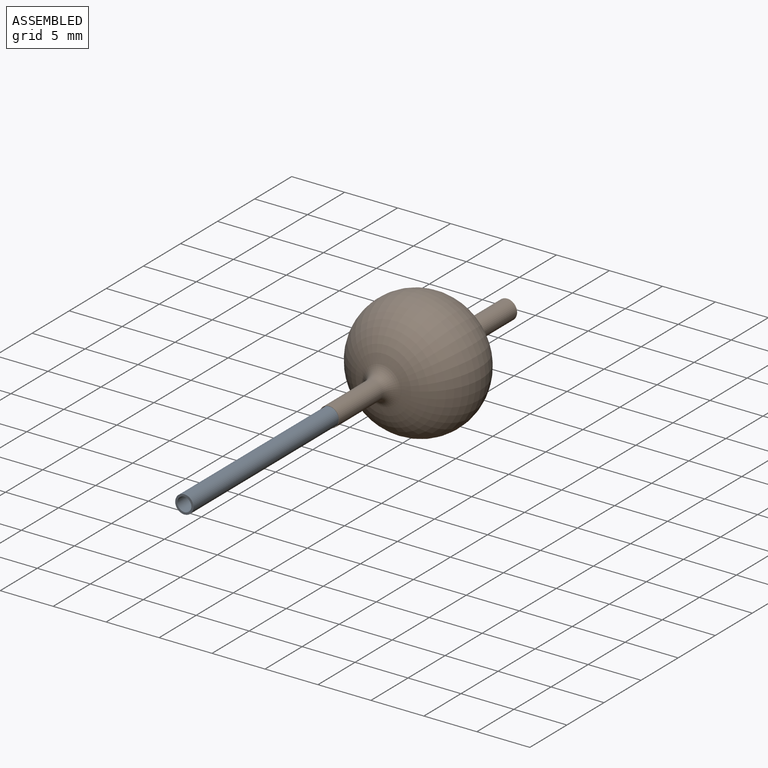
[diagram: assembled view]
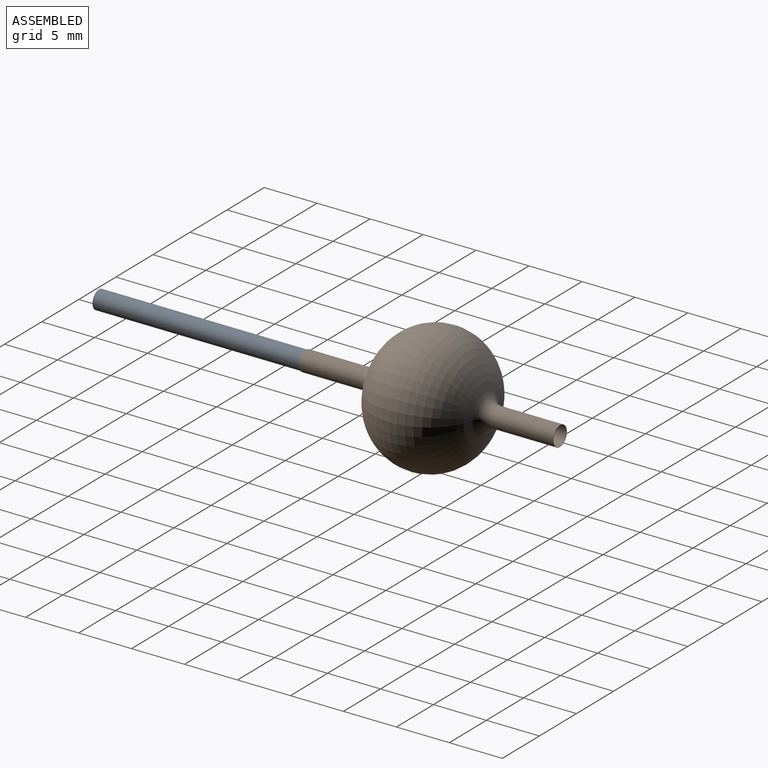
[diagram: assembled view, second angle]
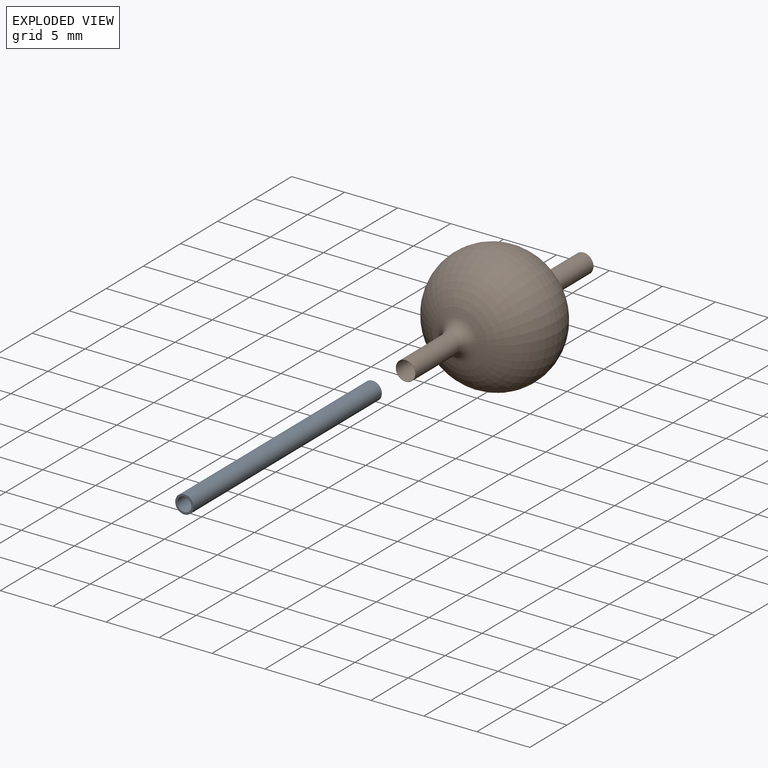
[diagram: exploded view]
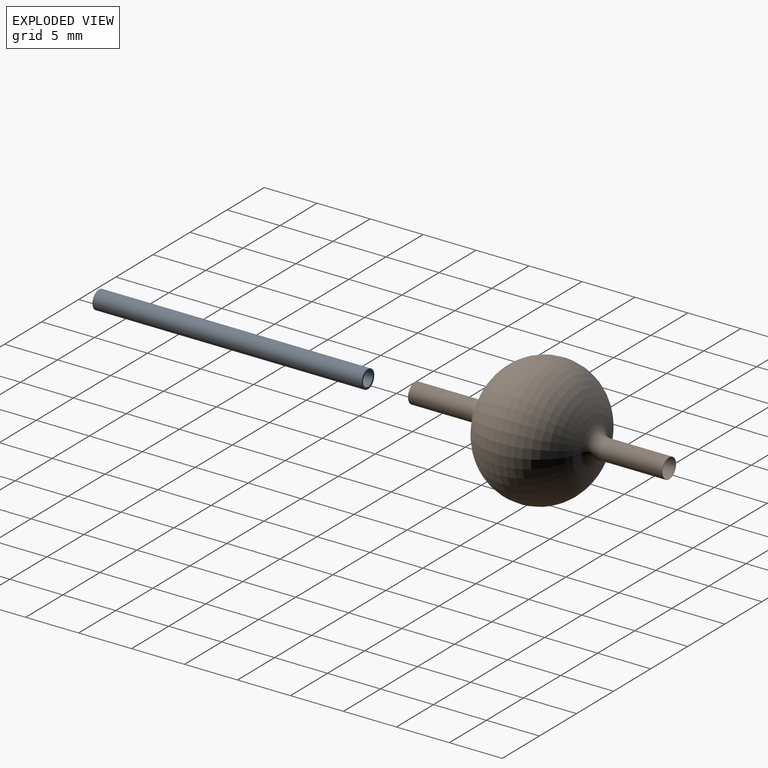
[diagram: exploded view, second angle]
ASSEMBLY  parts=2 mates=2
PART A: 4 faces, bbox 1.7x25.4x1.7 mm
  f0: cylinder r=0.66mm len=25.4mm, axis (0,1,0), area 105.4mm2, adj f2,f3
  f1: cylinder r=0.86mm len=25.4mm, axis (0,1,0), area 137.8mm2, adj f2,f3
  f2: plane 1.73x1.73mm, normal (0,-1,0), area 1mm2, adj f0,f1
  f3: plane 1.73x1.73mm, normal (0,1,0), area 1mm2, adj f0,f1
PART B: 12 faces, bbox 4.8x24x8.3 mm
  f0: cylinder r=0.93mm len=5.86mm, axis (0,-1,0), area 34.3mm2, adj f1,f11
  f1: plane 1.86x1.86mm, normal (0,-1,0), area 0.2mm2, adj f0,f2
  f2: cylinder r=0.9mm len=5.86mm, axis (0,-1,0), area 33.2mm2, adj f1,f3
  f3: torus R=2.2mm, axis (0,-1,0), area 14.2mm2, adj f2,f4
  f4: torus R=0.93mm, axis (0,-1,0), area 383.5mm2, adj f3,f5
  f5: torus R=2.2mm, axis (0,-1,0), area 14.2mm2, adj f4,f6
  f6: cylinder r=0.9mm len=5.86mm, axis (0,-1,0), area 33.2mm2, adj f5,f7
  f7: plane 1.86x1.86mm, normal (0,1,0), area 0.2mm2, adj f6,f8
  f8: cylinder r=0.93mm len=5.86mm, axis (0,-1,0), area 34.3mm2, adj f7,f9
  f9: torus R=2.2mm, axis (0,-1,0), area 14.1mm2, adj f8,f10
  f10: torus R=0.93mm, axis (0,-1,0), area 387.7mm2, adj f9,f11
  f11: torus R=2.2mm, axis (0,-1,0), area 14.1mm2, adj f0,f10
PLACE A t=(-14.23,14.85,-12.87)mm
PLACE B t=(-14.23,20.99,-12.87)mm
MATE cylindrical B.f0 <-> A.f1  axis (0,-1,0) through (-14.23,8.99,-12.87)mm
MATE fastened A.f1 <-> B.f0  axis (0,1,0) through (-14.23,14.85,-12.87)mm
